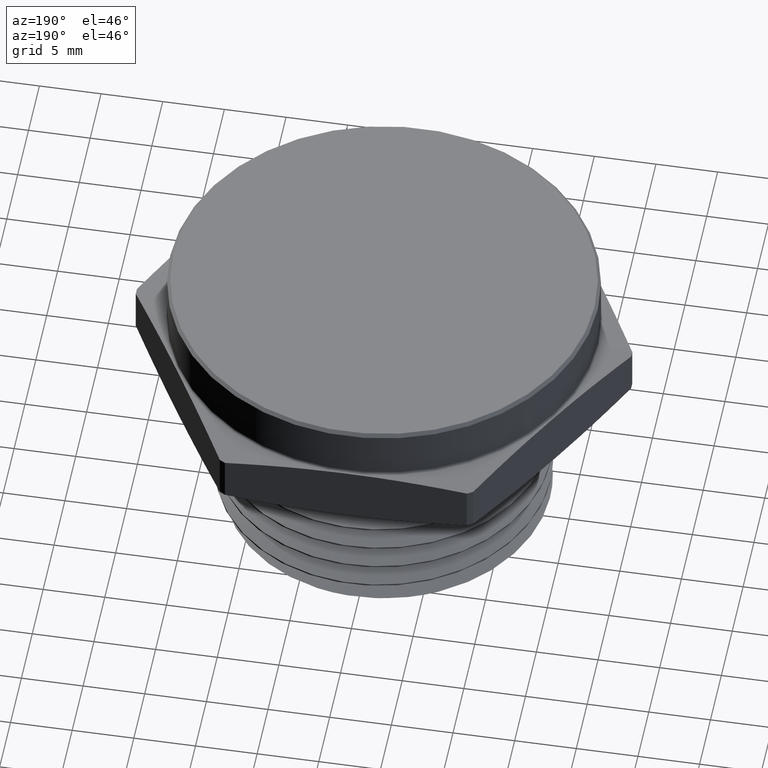
[diagram: clean part render]
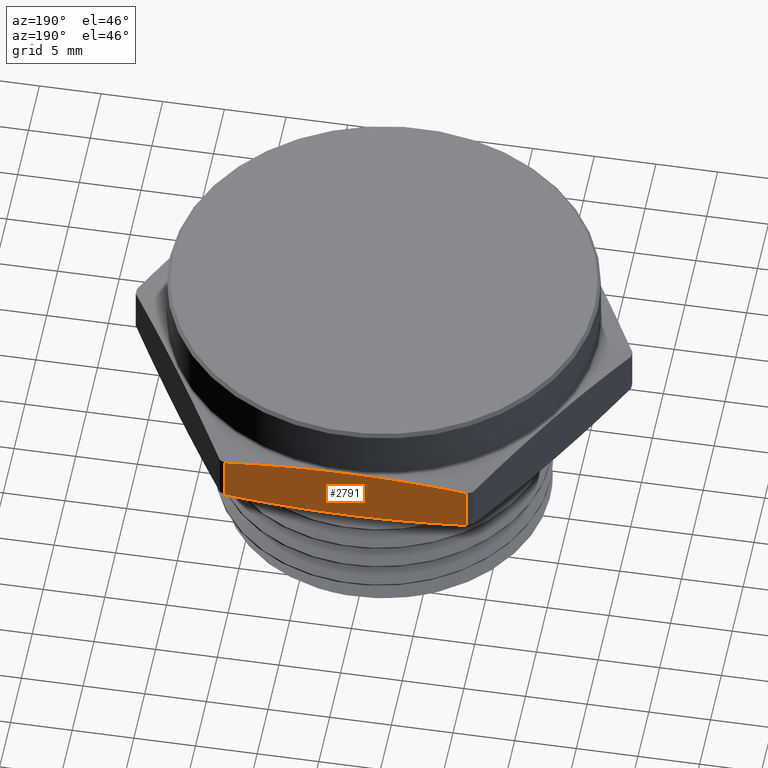
[diagram: same view with one face highlighted and labeled with its STEP entity id]
A machine part, auxiliary view. The second image highlights one B-rep face of the part: STEP entity #2791.
In plain terms, the highlighted planar face has unit normal (0, -1, 0).
Its self-contained STEP definition (entity closure, byte-faithful):
#39 = CARTESIAN_POINT ( 'NONE',  ( 0.2577349924749878800, 0.6900000000000000600, 0.1790623202400517300 ) ) ;
#40 = CARTESIAN_POINT ( 'NONE',  ( 0.3219976673027324400, 0.6900000000000000600, 0.1736610522531008600 ) ) ;
#44 = CARTESIAN_POINT ( 'NONE',  ( 0.3862318986596252600, 0.6900000000000000600, 0.1669921611342825600 ) ) ;
#45 = CARTESIAN_POINT ( 'NONE',  ( 0.1291328166739868200, 0.6900000000000000600, 0.1864409913948074400 ) ) ;
#46 = CARTESIAN_POINT ( 'NONE',  ( 0.06479285100724385700, 0.6900000000000000600, 0.1883976848462745900 ) ) ;
#47 = CARTESIAN_POINT ( 'NONE',  ( -0.06397452639531961400, 0.6900000000000001700, 0.1884139151563608800 ) ) ;
#48 = CARTESIAN_POINT ( 'NONE',  ( -0.1284019515022675500, 0.6900000000000000600, 0.1864728561119430600 ) ) ;
#49 = CARTESIAN_POINT ( 'NONE',  ( -0.2573352352397896300, 0.6900000000000000600, 0.1790952381461283800 ) ) ;
#50 = CARTESIAN_POINT ( 'NONE',  ( -0.3219022296586557800, 0.6899999999999998400, 0.1736709607278120200 ) ) ;
#51 = CARTESIAN_POINT ( 'NONE',  ( -0.3862318986596255400, 0.6900000000000000600, 0.1669921611342826100 ) ) ;
#372 = CARTESIAN_POINT ( 'NONE',  ( 0.3862318986596252600, 0.6900000000000000600, -4.729976584221138200E-017 ) ) ;
#373 = DIRECTION ( 'NONE',  ( 1.224646799147349800E-016, 0.0000000000000000000, 1.000000000000000000 ) ) ;
#374 = CARTESIAN_POINT ( 'NONE',  ( -0.3862318986596255400, 0.6900000000000000600, 4.729976584221138200E-017 ) ) ;
#375 = DIRECTION ( 'NONE',  ( -1.224646799147349800E-016, -0.0000000000000000000, -1.000000000000000000 ) ) ;
#685 = LINE ( 'NONE', #374, #689 ) ;
#686 = LINE ( 'NONE', #372, #687 ) ;
#687 = VECTOR ( 'NONE', #373, 39.37007874015748100 ) ;
#689 = VECTOR ( 'NONE', #375, 39.37007874015748100 ) ;
#718 = FACE_OUTER_BOUND ( 'NONE', #2471, .T. ) ;
#1565 = AXIS2_PLACEMENT_3D ( 'NONE', #1936, #1941, #1942 ) ;
#1606 = B_SPLINE_CURVE_WITH_KNOTS ( 'NONE', 3,
 ( #2303, #2309, #2310, #2302, #2301, #2300, #2299, #2298, #2297, #2296 ),
 .UNSPECIFIED., .F., .F.,
 ( 4, 2, 2, 2, 4 ),
 ( 0.01710330043053141800, 0.02202793163680559800, 0.02695256284307977900, 0.03187719404935396300, 0.03680182525562814000 ),
 .UNSPECIFIED. ) ;
#1609 = B_SPLINE_CURVE_WITH_KNOTS ( 'NONE', 3,
 ( #44, #40, #39, #45, #46, #47, #48, #49, #50, #51 ),
 .UNSPECIFIED., .F., .F.,
 ( 4, 2, 2, 2, 4 ),
 ( 0.03855655573833618300, 0.04347636953674217200, 0.04839618333514815500, 0.05331599713355414400, 0.05823581093196013300 ),
 .UNSPECIFIED. ) ;
#1879 = CARTESIAN_POINT ( 'NONE',  ( -0.3862318986596255400, 0.6900000000000000600, 0.1669921611342826100 ) ) ;
#1884 = CARTESIAN_POINT ( 'NONE',  ( 0.3862318986596252600, 0.6900000000000000600, 0.1669921611342825600 ) ) ;
#1887 = CARTESIAN_POINT ( 'NONE',  ( 0.3862318986596252600, 0.6900000000000000600, 0.02300783886571749300 ) ) ;
#1889 = CARTESIAN_POINT ( 'NONE',  ( -0.3862318986596255400, 0.6900000000000000600, 0.02300783886571763600 ) ) ;
#1935 = PLANE ( 'NONE',  #1565 ) ;
#1936 = CARTESIAN_POINT ( 'NONE',  ( 0.3983716857408415900, 0.6900000000000000600, 0.1899999999999999700 ) ) ;
#1941 = DIRECTION ( 'NONE',  ( 1.714383885355653700E-016, -1.000000000000000000, 0.0000000000000000000 ) ) ;
#1942 = DIRECTION ( 'NONE',  ( 1.000000000000000000, 1.714383885355653700E-016, 0.0000000000000000000 ) ) ;
#2296 = CARTESIAN_POINT ( 'NONE',  ( 0.3862318986596252600, 0.6900000000000000600, 0.02300783886571749300 ) ) ;
#2297 = CARTESIAN_POINT ( 'NONE',  ( 0.3219976673027323300, 0.6900000000000001700, 0.01633894774689921600 ) ) ;
#2298 = CARTESIAN_POINT ( 'NONE',  ( 0.2577349924749877100, 0.6899999999999998400, 0.01093767975994839600 ) ) ;
#2299 = CARTESIAN_POINT ( 'NONE',  ( 0.1291328166739866600, 0.6900000000000000600, 0.003559008605192706500 ) ) ;
#2300 = CARTESIAN_POINT ( 'NONE',  ( 0.06479285100724331600, 0.6900000000000000600, 0.001602315153725564600 ) ) ;
#2301 = CARTESIAN_POINT ( 'NONE',  ( -0.06397452639532026600, 0.6900000000000000600, 0.001586084843639326800 ) ) ;
#2302 = CARTESIAN_POINT ( 'NONE',  ( -0.1284019515022680700, 0.6899999999999998400, 0.003527143888057107400 ) ) ;
#2303 = CARTESIAN_POINT ( 'NONE',  ( -0.3862318986596255400, 0.6900000000000000600, 0.02300783886571763600 ) ) ;
#2309 = CARTESIAN_POINT ( 'NONE',  ( -0.3219022296586560600, 0.6899999999999998400, 0.01632903927218824400 ) ) ;
#2310 = CARTESIAN_POINT ( 'NONE',  ( -0.2573352352397901800, 0.6900000000000000600, 0.01090476185387188700 ) ) ;
#2471 = EDGE_LOOP ( 'NONE', ( #2829, #2830, #3230, #3231 ) ) ;
#2544 = EDGE_CURVE ( 'NONE', #2715, #2713, #1606, .T. ) ;
#2563 = EDGE_CURVE ( 'NONE', #2709, #2704, #1609, .T. ) ;
#2613 = EDGE_CURVE ( 'NONE', #2713, #2709, #686, .T. ) ;
#2614 = EDGE_CURVE ( 'NONE', #2704, #2715, #685, .T. ) ;
#2704 = VERTEX_POINT ( 'NONE', #1879 ) ;
#2709 = VERTEX_POINT ( 'NONE', #1884 ) ;
#2713 = VERTEX_POINT ( 'NONE', #1887 ) ;
#2715 = VERTEX_POINT ( 'NONE', #1889 ) ;
#2791 = ADVANCED_FACE ( 'NONE', ( #718 ), #1935, .F. ) ;
#2829 = ORIENTED_EDGE ( 'NONE', *, *, #2614, .F. ) ;
#2830 = ORIENTED_EDGE ( 'NONE', *, *, #2563, .F. ) ;
#3230 = ORIENTED_EDGE ( 'NONE', *, *, #2613, .F. ) ;
#3231 = ORIENTED_EDGE ( 'NONE', *, *, #2544, .F. ) ;